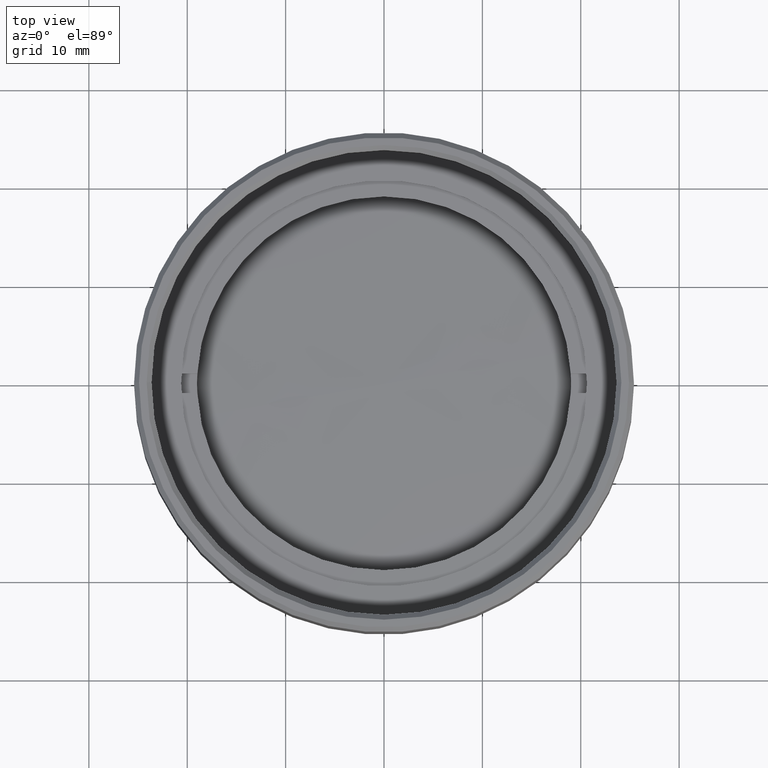
[diagram: clean part render]
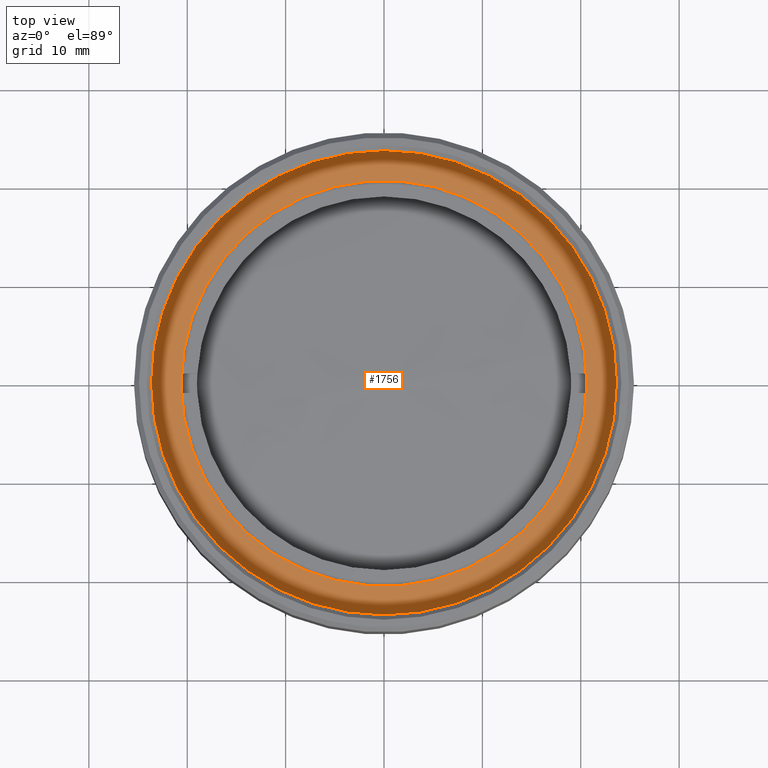
[diagram: same view with one face highlighted and labeled with its STEP entity id]
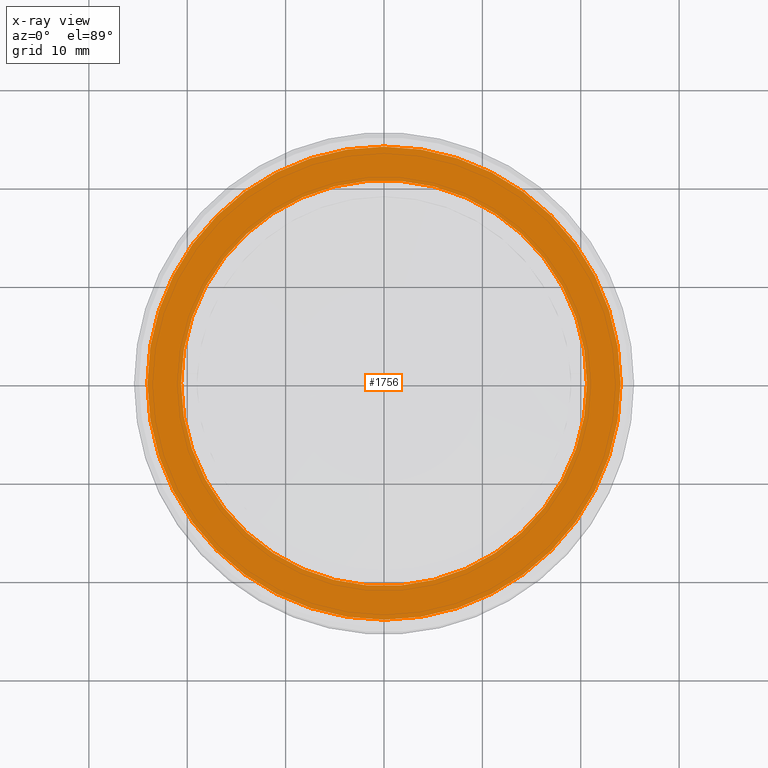
[diagram: x-ray of the same camera — body ghosted, the highlighted face saturated]
A machine part, top view. The second image highlights one B-rep face of the part: STEP entity #1756.
The next image is the same camera in x-ray: the body ghosted, the highlighted face saturated — about 0% of this face is hidden behind the body in this view.
In plain terms, the highlighted planar face has unit normal (0, 0, 1).
Its self-contained STEP definition (entity closure, byte-faithful):
#49 = EDGE_CURVE ( 'NONE', #157, #366, #551, .T. ) ;
#55 = PLANE ( 'NONE',  #1563 ) ;
#97 = EDGE_CURVE ( 'NONE', #1246, #137, #1840, .T. ) ;
#105 = AXIS2_PLACEMENT_3D ( 'NONE', #553, #859, #428 ) ;
#107 = EDGE_CURVE ( 'NONE', #366, #157, #507, .T. ) ;
#137 = VERTEX_POINT ( 'NONE', #1124 ) ;
#157 = VERTEX_POINT ( 'NONE', #979 ) ;
#192 = CARTESIAN_POINT ( 'NONE',  ( 24.05000000000000071, 2.945275551949384573E-15, 14.00000000000000000 ) ) ;
#258 = CARTESIAN_POINT ( 'NONE',  ( 0.000000000000000000, 0.000000000000000000, 14.00000000000000000 ) ) ;
#350 = AXIS2_PLACEMENT_3D ( 'NONE', #258, #1144, #418 ) ;
#366 = VERTEX_POINT ( 'NONE', #192 ) ;
#418 = DIRECTION ( 'NONE',  ( 1.000000000000000000, 0.000000000000000000, 0.000000000000000000 ) ) ;
#428 = DIRECTION ( 'NONE',  ( 1.000000000000000000, 0.000000000000000000, 0.000000000000000000 ) ) ;
#460 = ORIENTED_EDGE ( 'NONE', *, *, #49, .T. ) ;
#507 = CIRCLE ( 'NONE', #105, 24.05000000000000071 ) ;
#551 = CIRCLE ( 'NONE', #791, 24.05000000000000071 ) ;
#553 = CARTESIAN_POINT ( 'NONE',  ( 0.000000000000000000, 0.000000000000000000, 14.00000000000000000 ) ) ;
#791 = AXIS2_PLACEMENT_3D ( 'NONE', #1465, #1594, #1750 ) ;
#815 = EDGE_CURVE ( 'NONE', #137, #1246, #1741, .T. ) ;
#820 = AXIS2_PLACEMENT_3D ( 'NONE', #1755, #1307, #878 ) ;
#829 = CARTESIAN_POINT ( 'NONE',  ( 20.62500000000000000, 0.000000000000000000, 14.00000000000000000 ) ) ;
#859 = DIRECTION ( 'NONE',  ( 0.000000000000000000, 0.000000000000000000, 1.000000000000000000 ) ) ;
#878 = DIRECTION ( 'NONE',  ( 1.000000000000000000, 0.000000000000000000, 0.000000000000000000 ) ) ;
#920 = EDGE_LOOP ( 'NONE', ( #460, #1364 ) ) ;
#979 = CARTESIAN_POINT ( 'NONE',  ( -24.05000000000000071, 0.000000000000000000, 14.00000000000000000 ) ) ;
#1076 = ORIENTED_EDGE ( 'NONE', *, *, #97, .T. ) ;
#1098 = FACE_OUTER_BOUND ( 'NONE', #920, .T. ) ;
#1124 = CARTESIAN_POINT ( 'NONE',  ( -20.62500000000000000, 2.525834023241415981E-15, 14.00000000000000000 ) ) ;
#1144 = DIRECTION ( 'NONE',  ( -0.000000000000000000, -0.000000000000000000, -1.000000000000000000 ) ) ;
#1222 = DIRECTION ( 'NONE',  ( 1.000000000000000000, 0.000000000000000000, -0.000000000000000000 ) ) ;
#1237 = EDGE_LOOP ( 'NONE', ( #1076, #1657 ) ) ;
#1246 = VERTEX_POINT ( 'NONE', #829 ) ;
#1307 = DIRECTION ( 'NONE',  ( -0.000000000000000000, -0.000000000000000000, -1.000000000000000000 ) ) ;
#1364 = ORIENTED_EDGE ( 'NONE', *, *, #107, .T. ) ;
#1465 = CARTESIAN_POINT ( 'NONE',  ( 0.000000000000000000, 0.000000000000000000, 14.00000000000000000 ) ) ;
#1506 = FACE_BOUND ( 'NONE', #1237, .T. ) ;
#1563 = AXIS2_PLACEMENT_3D ( 'NONE', #1693, #1684, #1222 ) ;
#1594 = DIRECTION ( 'NONE',  ( 0.000000000000000000, 0.000000000000000000, 1.000000000000000000 ) ) ;
#1657 = ORIENTED_EDGE ( 'NONE', *, *, #815, .T. ) ;
#1684 = DIRECTION ( 'NONE',  ( 0.000000000000000000, 0.000000000000000000, 1.000000000000000000 ) ) ;
#1693 = CARTESIAN_POINT ( 'NONE',  ( 0.000000000000000000, 0.000000000000000000, 14.00000000000000000 ) ) ;
#1741 = CIRCLE ( 'NONE', #820, 20.62500000000000000 ) ;
#1750 = DIRECTION ( 'NONE',  ( 1.000000000000000000, 0.000000000000000000, 0.000000000000000000 ) ) ;
#1755 = CARTESIAN_POINT ( 'NONE',  ( 0.000000000000000000, 0.000000000000000000, 14.00000000000000000 ) ) ;
#1756 = ADVANCED_FACE ( 'NONE', ( #1506, #1098 ), #55, .T. ) ;
#1840 = CIRCLE ( 'NONE', #350, 20.62500000000000000 ) ;